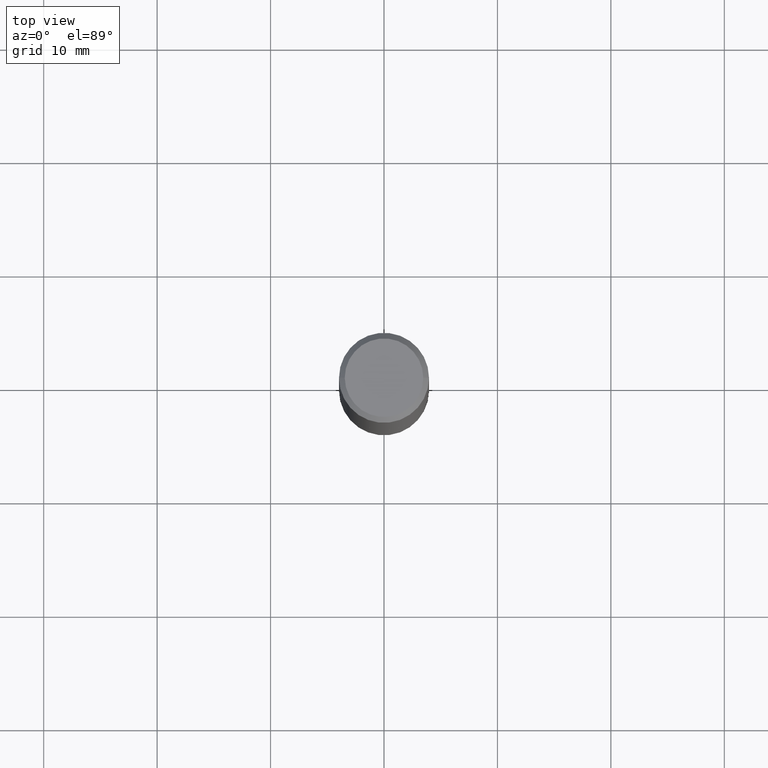
[diagram: clean part render]
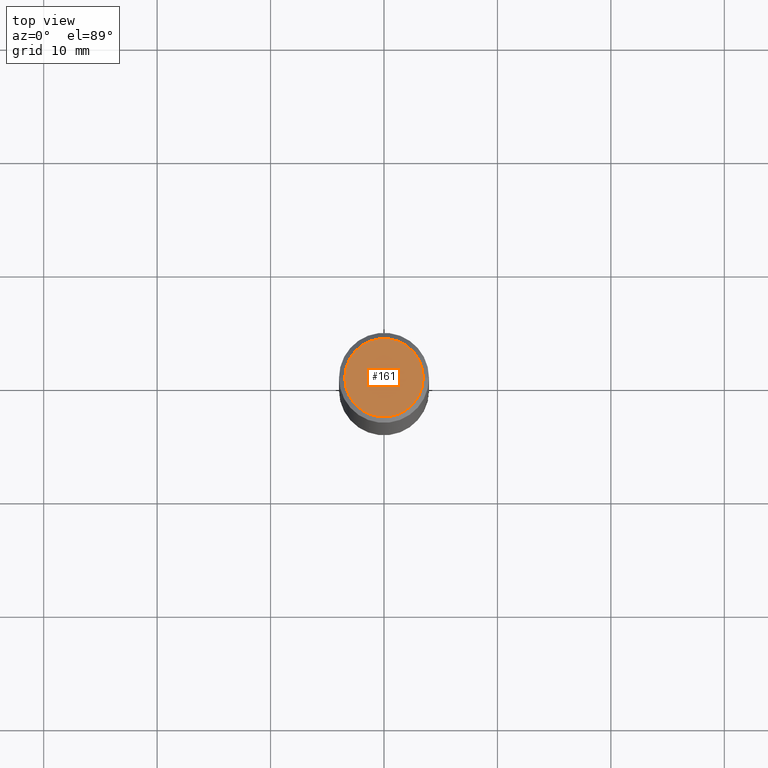
[diagram: same view with one face highlighted and labeled with its STEP entity id]
A machine part, top view. The second image highlights one B-rep face of the part: STEP entity #161.
In plain terms, the highlighted planar face has unit normal (0, -0, -1).
Its self-contained STEP definition (entity closure, byte-faithful):
#5 = CARTESIAN_POINT ( 'NONE',  ( 9.514286648347525771E-16, 0.1362499999999998435, -4.735800761723278502E-16 ) ) ;
#9 = DIRECTION ( 'NONE',  ( -2.445468806185136597E-29, 3.491481338843145583E-15, 1.000000000000000000 ) ) ;
#52 = DIRECTION ( 'NONE',  ( -2.445468806185136597E-29, 3.491481338843145583E-15, 1.000000000000000000 ) ) ;
#60 = VERTEX_POINT ( 'NONE', #72 ) ;
#72 = CARTESIAN_POINT ( 'NONE',  ( 0.1362499999999998435, -1.038262645562516941E-15, 4.268512490107368508E-18 ) ) ;
#93 = DIRECTION ( 'NONE',  ( 2.438088387897960049E-29, -3.491481338843145188E-15, -1.000000000000000000 ) ) ;
#105 = EDGE_CURVE ( 'NONE', #306, #60, #335, .T. ) ;
#112 = AXIS2_PLACEMENT_3D ( 'NONE', #265, #9, #128 ) ;
#119 = EDGE_LOOP ( 'NONE', ( #255, #164 ) ) ;
#128 = DIRECTION ( 'NONE',  ( 1.000000000000000000, -6.982962677686266711E-15, 4.876388394912424373E-29 ) ) ;
#161 = ADVANCED_FACE ( 'NONE', ( #257 ), #225, .F. ) ;
#164 = ORIENTED_EDGE ( 'NONE', *, *, #316, .T. ) ;
#199 = AXIS2_PLACEMENT_3D ( 'NONE', #211, #52, #296 ) ;
#211 = CARTESIAN_POINT ( 'NONE',  ( -1.043851414335219820E-46, 1.490343170380447200E-32, 4.268512490100411279E-18 ) ) ;
#219 = CIRCLE ( 'NONE', #199, 0.1362499999999998435 ) ;
#225 = PLANE ( 'NONE',  #245 ) ;
#231 = DIRECTION ( 'NONE',  ( -1.000000000000000000, 6.982962677686265922E-15, -4.876176775795935793E-29 ) ) ;
#245 = AXIS2_PLACEMENT_3D ( 'NONE', #5, #93, #231 ) ;
#255 = ORIENTED_EDGE ( 'NONE', *, *, #105, .T. ) ;
#257 = FACE_OUTER_BOUND ( 'NONE', #119, .T. ) ;
#265 = CARTESIAN_POINT ( 'NONE',  ( -1.043851414335219820E-46, 1.490343170380447200E-32, 4.268512490100411279E-18 ) ) ;
#296 = DIRECTION ( 'NONE',  ( 1.000000000000000000, -6.982962677686266711E-15, 4.876388394912424373E-29 ) ) ;
#306 = VERTEX_POINT ( 'NONE', #353 ) ;
#316 = EDGE_CURVE ( 'NONE', #60, #306, #219, .T. ) ;
#335 = CIRCLE ( 'NONE', #112, 0.1362499999999998435 ) ;
#353 = CARTESIAN_POINT ( 'NONE',  ( -0.1362499999999998435, 9.863434782231838318E-16, 4.268512490093635087E-18 ) ) ;